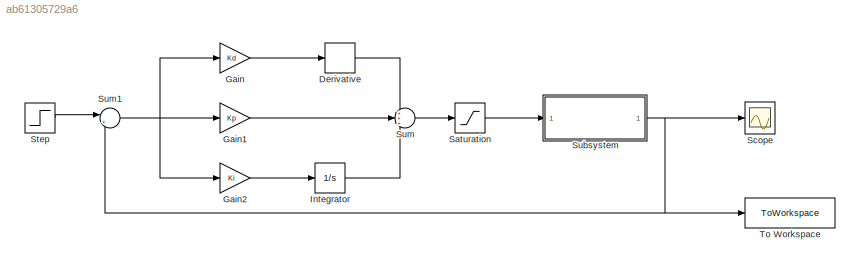
MODEL slx_ab61305729a6
KIND model
CONFIG AbsTol = auto
CONFIG EnableMultiTasking = off
CONFIG FixedStep = 0.001
CONFIG MaxStep = auto
CONFIG MinStep = auto
CONFIG RelTol = 1e-3
CONFIG SampleTimeConstraint = Unconstrained
CONFIG SolverName = FixedStepAuto
CONFIG StartTime = 0.0
CONFIG StopTime = 300
BLOCK [Derivative] Derivative
BLOCK [Gain] Gain
  Gain = Kd
BLOCK [Gain] Gain1
  Gain = Kp
BLOCK [Gain] Gain2
  Gain = Ki
BLOCK [Integrator] Integrator
  Ports = [1, 1]
BLOCK [Saturate] Saturation
  LowerLimit = 0
  UpperLimit = 22
BLOCK [Scope] Scope
  Floating = off
  NumInputPorts = 1
  Ports = [1]
  ScopeSpecificationString = Simulink.scopes.TimeScopeBlockCfg('CurrentConfiguration', extmgr.ConfigurationSet(extmgr.Configuration('Core','General UI',true),extmgr.Configuration('Core','Source UI',true),extmgr.Configuration('Sources','WiredSimulink',true),extmgr.Configuration('Visuals','Time Domain',true,'SerializedDisplays',{struct('MinYLimReal','-1.70569','MaxYLimReal','15.35121','YLabelReal','','MinYLimMag','0.00000','Max...<+1731ch>
BLOCK [Step] Step
  After = 12
  Before = 10
  SampleTime = 0
  Time = 150
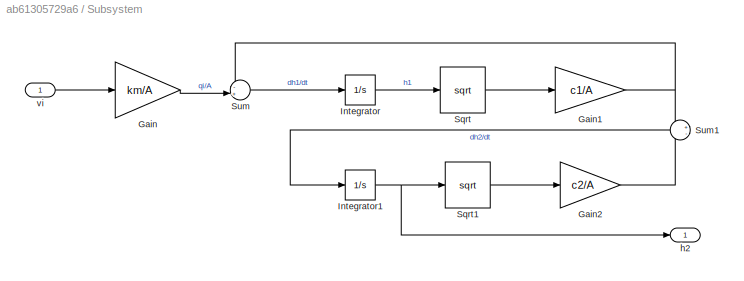
BLOCK [SubSystem] Subsystem
  Ports = [1, 1]
  RequestExecContextInheritance = off
BLOCK [Gain] Subsystem/Gain
  Gain = km/A
BLOCK [Gain] Subsystem/Gain1
  Gain = c1/A
BLOCK [Gain] Subsystem/Gain2
  Gain = c2/A
BLOCK [Integrator] Subsystem/Integrator
  Ports = [1, 1]
BLOCK [Integrator] Subsystem/Integrator1
  Ports = [1, 1]
BLOCK [Sqrt] Subsystem/Sqrt
BLOCK [Sqrt] Subsystem/Sqrt1
BLOCK [Sum] Subsystem/Sum
  Inputs = -+|
  Ports = [2, 1]
BLOCK [Sum] Subsystem/Sum1
  Inputs = +-
  NameLocation = top
  Ports = [2, 1]
BLOCK [Outport] Subsystem/h2
BLOCK [Inport] Subsystem/vi
BLOCK [Sum] Sum
  Inputs = +++
  Ports = [3, 1]
BLOCK [Sum] Sum1
  Inputs = |+-
  Ports = [2, 1]
BLOCK [ToWorkspace] To Workspace
  FixptAsFi = on
  MaxDataPoints = inf
  Ports = [1]
  SampleTime = -1
  SaveFormat = Structure With Time
  VariableName = dh2
LINE Derivative:1 -> Sum:1
LINE Gain1:1 -> Sum:2
LINE Gain2:1 -> Integrator:1
LINE Gain:1 -> Derivative:1
LINE Integrator:1 -> Sum:3
LINE Saturation:1 -> Subsystem:1
LINE Step:1 -> Sum1:1
NET Subsystem/Gain1:1 -> Subsystem/Sum1:1, Subsystem/Sum:1
LINE Subsystem/Gain2:1 -> Subsystem/Sum1:2
LINE Subsystem/Gain:1 -> Subsystem/Sum:2
NET Subsystem/Integrator1:1 -> Subsystem/Sqrt1:1, Subsystem/h2:1
LINE Subsystem/Integrator:1 -> Subsystem/Sqrt:1
LINE Subsystem/Sqrt1:1 -> Subsystem/Gain2:1
LINE Subsystem/Sqrt:1 -> Subsystem/Gain1:1
LINE Subsystem/Sum1:1 -> Subsystem/Integrator1:1
LINE Subsystem/Sum:1 -> Subsystem/Integrator:1
LINE Subsystem/vi:1 -> Subsystem/Gain:1
NET Subsystem:1 -> Scope:1, Sum1:2, To Workspace:1
NET Sum1:1 -> Gain1:1, Gain2:1, Gain:1
LINE Sum:1 -> Saturation:1
note: NET lines group one-source signal fan-out (src -> all destinations, sorted); 1:1 wires keep LINE
